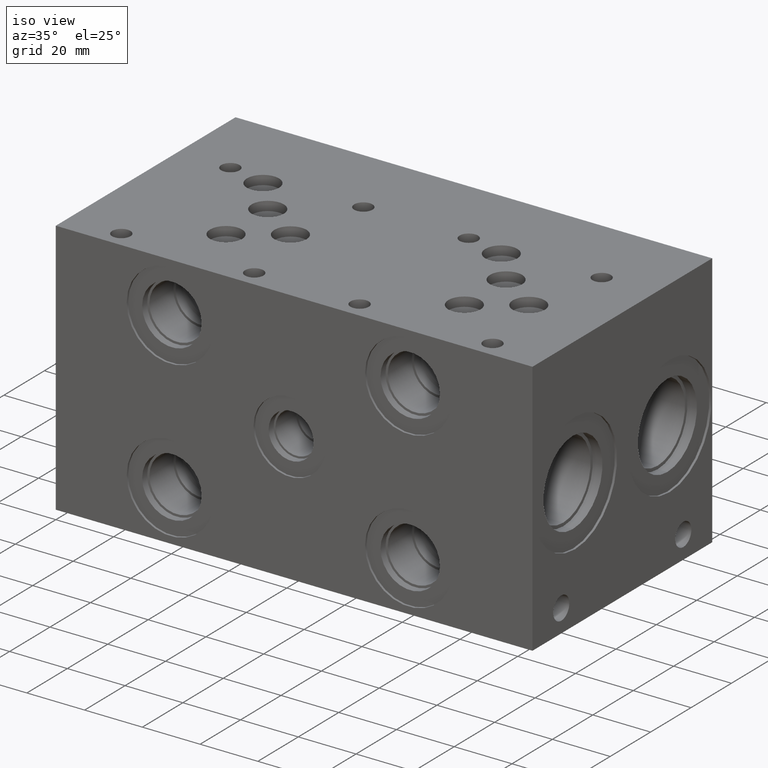
[diagram: clean part render]
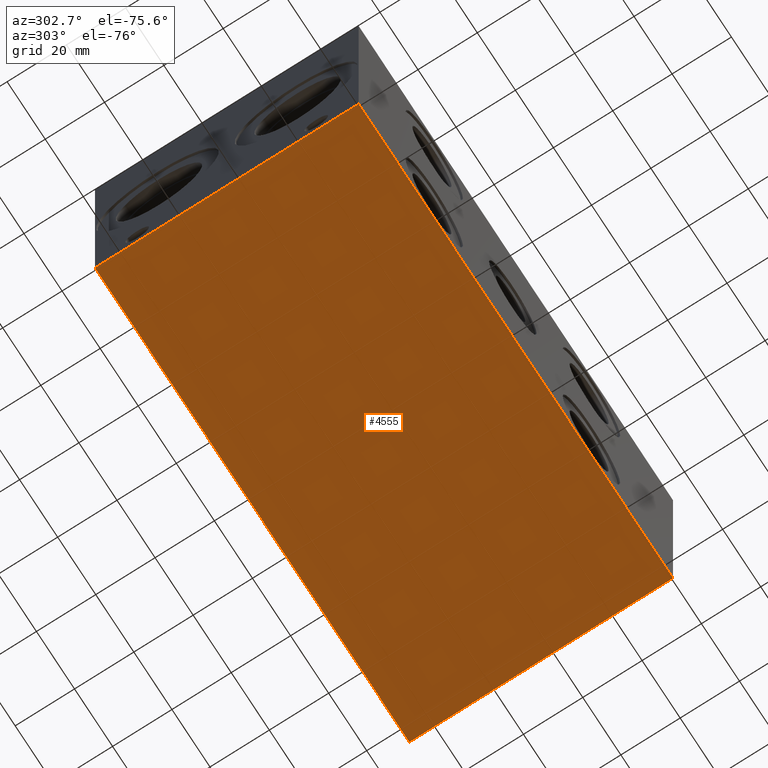
[diagram: tour spotlight — one face highlighted and labeled with its STEP entity id]
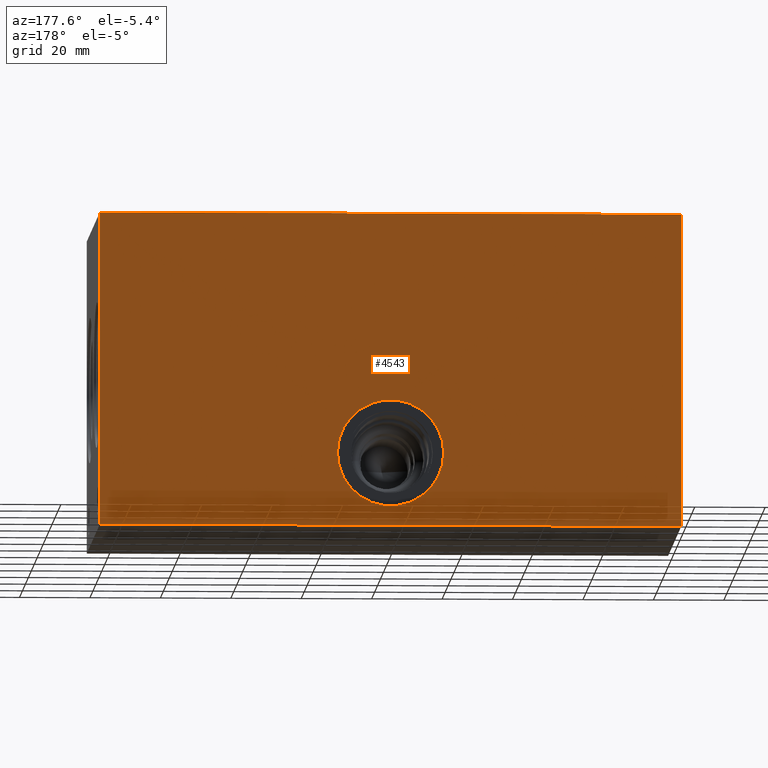
[diagram: tour spotlight — one face highlighted and labeled with its STEP entity id]
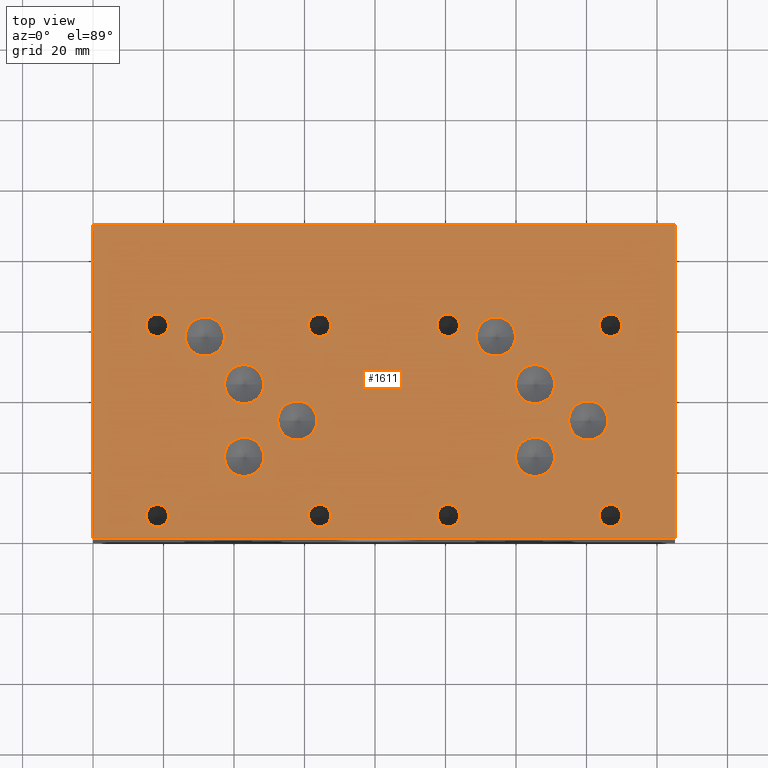
[diagram: tour spotlight — one face highlighted and labeled with its STEP entity id]
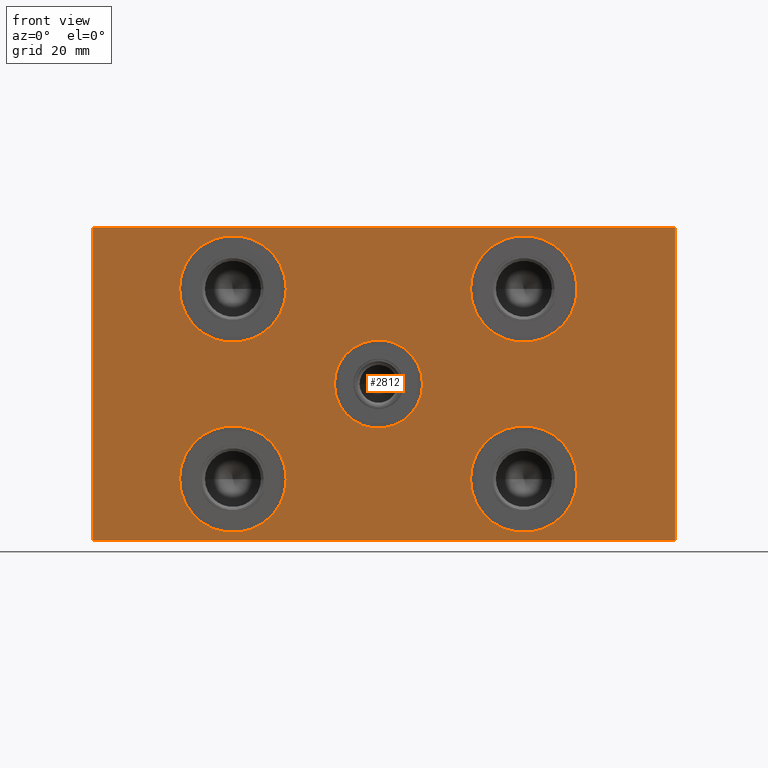
[diagram: tour spotlight — one face highlighted and labeled with its STEP entity id]
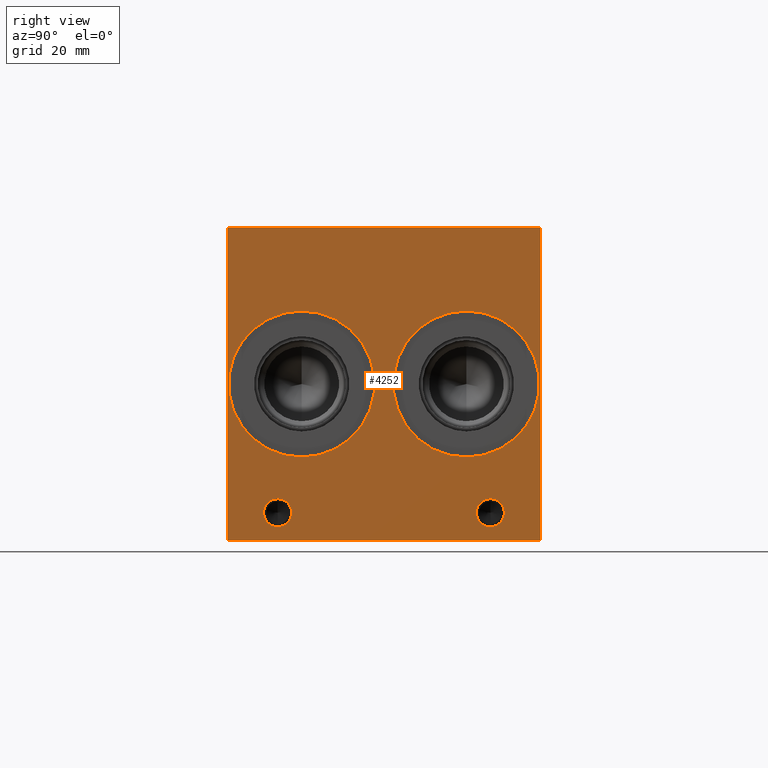
[diagram: tour spotlight — one face highlighted and labeled with its STEP entity id]
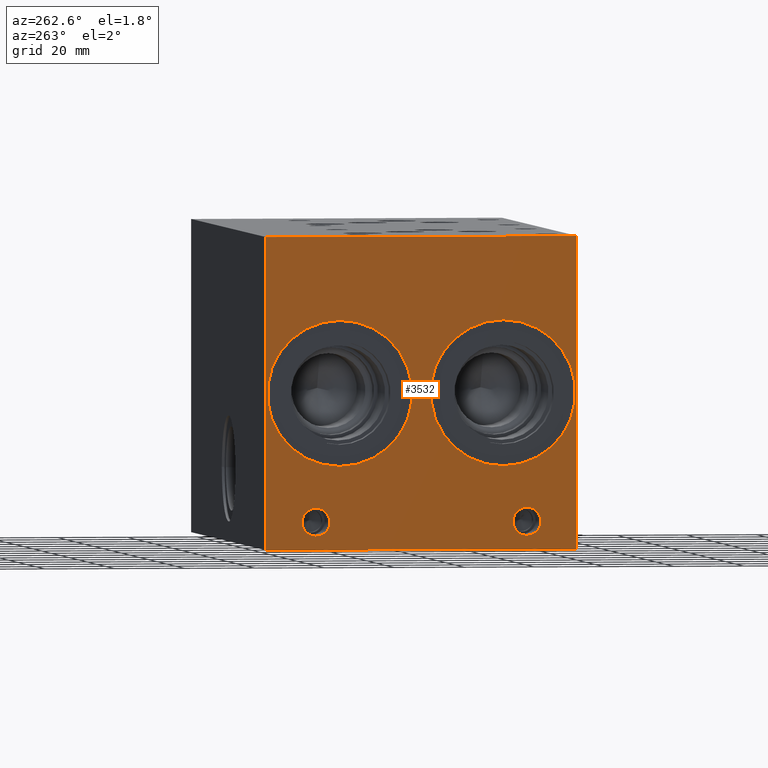
[diagram: tour spotlight — one face highlighted and labeled with its STEP entity id]
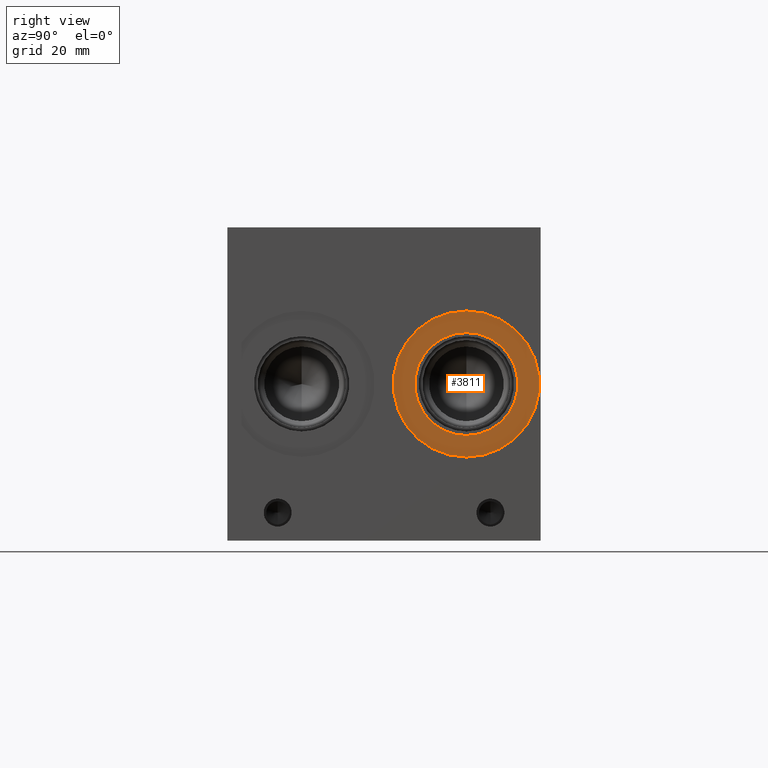
[diagram: tour spotlight — one face highlighted and labeled with its STEP entity id]
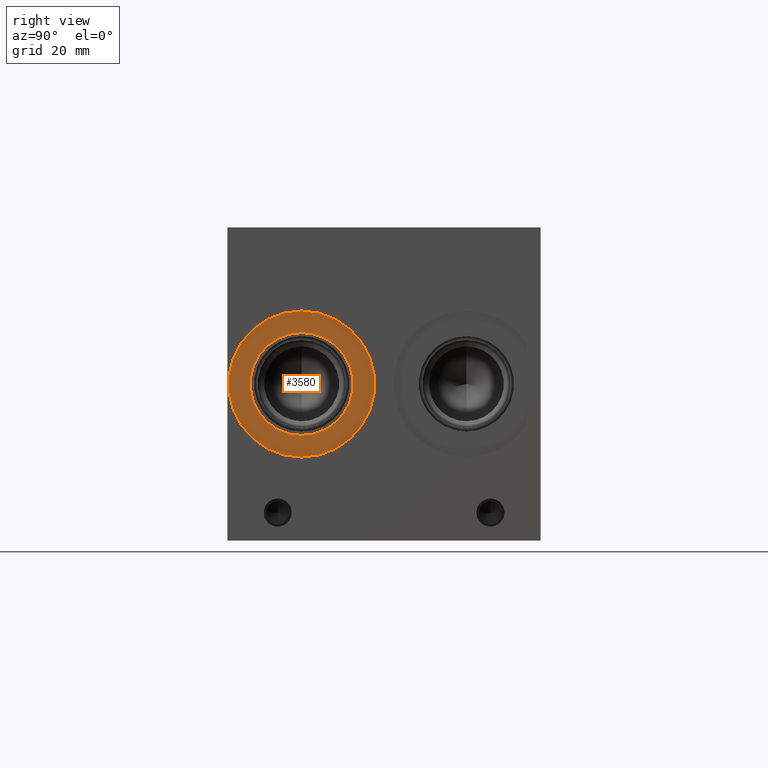
[diagram: tour spotlight — one face highlighted and labeled with its STEP entity id]
A machine part: a face-by-face anatomy tour. The part has 202 B-rep faces; the first image is the clean iso view, then the 8 largest visible faces are spotlighted one at a time (largest first), each with its STEP entity span.

Face 1 — auxiliary view, entity #4555. In plain terms, the highlighted planar face has unit normal (0, 0, -1).
Definition (entity closure, byte-faithful):
#2773=CARTESIAN_POINT('',(0.0,0.0,0.0));
#2774=VERTEX_POINT('',#2773);
#2781=CARTESIAN_POINT('',(165.099999999999970,0.0,0.0));
#2782=VERTEX_POINT('',#2781);
#2783=CARTESIAN_POINT('',(0.0,0.0,0.0));
#2784=DIRECTION('',(1.0,0.0,0.0));
#2785=VECTOR('',#2784,165.099999999999970);
#2786=LINE('',#2783,#2785);
#2787=EDGE_CURVE('',#2774,#2782,#2786,.T.);
#3503=CARTESIAN_POINT('',(0.0,88.899999999999991,0.0));
#3504=VERTEX_POINT('',#3503);
#3511=CARTESIAN_POINT('',(0.0,88.899999999999991,0.0));
#3512=DIRECTION('',(0.0,-1.0,0.0));
#3513=VECTOR('',#3512,88.899999999999991);
#3514=LINE('',#3511,#3513);
#3515=EDGE_CURVE('',#3504,#2774,#3514,.T.);
#4224=CARTESIAN_POINT('',(165.099999999999970,88.899999999999991,0.0));
#4225=VERTEX_POINT('',#4224);
#4226=CARTESIAN_POINT('',(165.099999999999970,0.0,0.0));
#4227=DIRECTION('',(0.0,1.0,0.0));
#4228=VECTOR('',#4227,88.899999999999991);
#4229=LINE('',#4226,#4228);
#4230=EDGE_CURVE('',#2782,#4225,#4229,.T.);
#4531=CARTESIAN_POINT('',(165.099999999999970,88.899999999999991,0.0));
#4532=DIRECTION('',(-1.0,0.0,0.0));
#4533=VECTOR('',#4532,165.099999999999970);
#4534=LINE('',#4531,#4533);
#4535=EDGE_CURVE('',#4225,#3504,#4534,.T.);
#4544=CARTESIAN_POINT('',(0.0,88.899999999999991,0.0));
#4545=DIRECTION('',(0.0,0.0,-1.0));
#4546=DIRECTION('',(-1.0,0.0,0.0));
#4547=AXIS2_PLACEMENT_3D('',#4544,#4545,#4546);
#4548=PLANE('',#4547);
#4549=ORIENTED_EDGE('',*,*,#2787,.F.);
#4550=ORIENTED_EDGE('',*,*,#3515,.F.);
#4551=ORIENTED_EDGE('',*,*,#4535,.F.);
#4552=ORIENTED_EDGE('',*,*,#4230,.F.);
#4553=EDGE_LOOP('',(#4549,#4550,#4551,#4552));
#4554=FACE_OUTER_BOUND('',#4553,.T.);
#4555=ADVANCED_FACE('',(#4554),#4548,.T.);

Face 2 — auxiliary view, entity #4543. In plain terms, the highlighted planar face has unit normal (0, -1, 0).
Definition (entity closure, byte-faithful):
#1531=CARTESIAN_POINT('',(0.0,88.899999999999991,88.899999999999991));
#1532=VERTEX_POINT('',#1531);
#1547=CARTESIAN_POINT('',(165.099999999999970,88.899999999999991,88.899999999999991));
#1548=VERTEX_POINT('',#1547);
#1555=CARTESIAN_POINT('',(0.0,88.899999999999991,88.899999999999991));
#1556=DIRECTION('',(1.0,0.0,0.0));
#1557=VECTOR('',#1556,165.099999999999970);
#1558=LINE('',#1555,#1557);
#1559=EDGE_CURVE('',#1532,#1548,#1558,.T.);
#3503=CARTESIAN_POINT('',(0.0,88.899999999999991,0.0));
#3504=VERTEX_POINT('',#3503);
#3505=CARTESIAN_POINT('',(0.0,88.899999999999991,0.0));
#3506=DIRECTION('',(0.0,0.0,1.0));
#3507=VECTOR('',#3506,88.899999999999991);
#3508=LINE('',#3505,#3507);
#3509=EDGE_CURVE('',#3504,#1532,#3508,.T.);
#4224=CARTESIAN_POINT('',(165.099999999999970,88.899999999999991,0.0));
#4225=VERTEX_POINT('',#4224);
#4232=CARTESIAN_POINT('',(165.099999999999970,88.899999999999991,0.0));
#4233=DIRECTION('',(0.0,0.0,1.0));
#4234=VECTOR('',#4233,88.899999999999991);
#4235=LINE('',#4232,#4234);
#4236=EDGE_CURVE('',#4225,#1548,#4235,.T.);
#4258=CARTESIAN_POINT('',(97.637599999999978,88.899999999999991,20.650199999999998));
#4259=VERTEX_POINT('',#4258);
#4260=CARTESIAN_POINT('',(82.549999999999983,88.899999999999991,20.650199999999998));
#4261=DIRECTION('',(0.0,-1.0,0.0));
#4262=DIRECTION('',(0.0,0.0,-1.0));
#4263=AXIS2_PLACEMENT_3D('',#4260,#4261,#4262);
#4264=CIRCLE('',#4263,15.087599999999997);
#4265=EDGE_CURVE('',#4259,#4259,#4264,.T.);
#4524=CARTESIAN_POINT('',(0.0,88.899999999999991,88.899999999999991));
#4525=DIRECTION('',(0.0,-1.0,0.0));
#4526=DIRECTION('',(0.0,0.0,-1.0));
#4527=AXIS2_PLACEMENT_3D('',#4524,#4525,#4526);
#4528=PLANE('',#4527);
#4529=ORIENTED_EDGE('',*,*,#1559,.T.);
#4530=ORIENTED_EDGE('',*,*,#4236,.F.);
#4531=CARTESIAN_POINT('',(165.099999999999970,88.899999999999991,0.0));
#4532=DIRECTION('',(-1.0,0.0,0.0));
#4533=VECTOR('',#4532,165.099999999999970);
#4534=LINE('',#4531,#4533);
#4535=EDGE_CURVE('',#4225,#3504,#4534,.T.);
#4536=ORIENTED_EDGE('',*,*,#4535,.T.);
#4537=ORIENTED_EDGE('',*,*,#3509,.T.);
#4538=EDGE_LOOP('',(#4529,#4530,#4536,#4537));
#4539=FACE_OUTER_BOUND('',#4538,.T.);
#4540=ORIENTED_EDGE('',*,*,#4265,.T.);
#4541=EDGE_LOOP('',(#4540));
#4542=FACE_BOUND('',#4541,.T.);
#4543=ADVANCED_FACE('',(#4539,#4542),#4528,.F.);

Face 3 — top view, entity #1611. In plain terms, the highlighted planar face has unit normal (0, 0, -1).
Definition (entity closure, byte-faithful):
#73=CARTESIAN_POINT('',(63.499999999999986,33.324799999999996,88.899999999999991));
#74=VERTEX_POINT('',#73);
#75=CARTESIAN_POINT('',(57.937399999999997,33.324799999999996,88.899999999999991));
#76=DIRECTION('',(0.0,0.0,-1.0));
#77=DIRECTION('',(1.0,0.0,0.0));
#78=AXIS2_PLACEMENT_3D('',#75,#76,#77);
#79=CIRCLE('',#78,5.562600000000000);
#80=EDGE_CURVE('',#74,#74,#79,.T.);
#144=CARTESIAN_POINT('',(37.307519999999997,57.137299999999982,88.899999999999991));
#145=VERTEX_POINT('',#144);
#146=CARTESIAN_POINT('',(31.744919999999993,57.137299999999982,88.899999999999991));
#147=DIRECTION('',(0.0,0.0,-1.0));
#148=DIRECTION('',(1.0,0.0,0.0));
#149=AXIS2_PLACEMENT_3D('',#146,#147,#148);
#150=CIRCLE('',#149,5.562600000000000);
#151=EDGE_CURVE('',#145,#145,#150,.T.);
#215=CARTESIAN_POINT('',(48.412399999999991,43.644819999999996,88.899999999999991));
#216=VERTEX_POINT('',#215);
#217=CARTESIAN_POINT('',(42.849800000000002,43.644819999999996,88.899999999999991));
#218=DIRECTION('',(0.0,0.0,-1.0));
#219=DIRECTION('',(1.0,0.0,0.0));
#220=AXIS2_PLACEMENT_3D('',#217,#218,#219);
#221=CIRCLE('',#220,5.562600000000000);
#222=EDGE_CURVE('',#216,#216,#221,.T.);
#286=CARTESIAN_POINT('',(48.417479999999991,23.007319999999996,88.899999999999991));
#287=VERTEX_POINT('',#286);
#288=CARTESIAN_POINT('',(42.854879999999994,23.007319999999996,88.899999999999991));
#289=DIRECTION('',(0.0,0.0,-1.0));
#290=DIRECTION('',(1.0,0.0,0.0));
#291=AXIS2_PLACEMENT_3D('',#288,#289,#290);
#292=CIRCLE('',#291,5.562600000000000);
#293=EDGE_CURVE('',#287,#287,#292,.T.);
#357=CARTESIAN_POINT('',(21.424900000000001,6.337299999999999,88.899999999999991));
#358=VERTEX_POINT('',#357);
#359=CARTESIAN_POINT('',(18.249900000000000,6.337299999999999,88.899999999999991));
#360=DIRECTION('',(0.0,0.0,-1.0));
#361=DIRECTION('',(1.0,0.0,0.0));
#362=AXIS2_PLACEMENT_3D('',#359,#360,#361);
#363=CIRCLE('',#362,3.174999999999999);
#364=EDGE_CURVE('',#358,#358,#363,.T.);
#468=CARTESIAN_POINT('',(67.462399999999988,6.337299999999999,88.899999999999991));
#469=VERTEX_POINT('',#468);
#470=CARTESIAN_POINT('',(64.287400000000005,6.337299999999999,88.899999999999991));
#471=DIRECTION('',(0.0,0.0,-1.0));
#472=DIRECTION('',(1.0,0.0,0.0));
#473=AXIS2_PLACEMENT_3D('',#470,#471,#472);
#474=CIRCLE('',#473,3.174999999999999);
#475=EDGE_CURVE('',#469,#469,#474,.T.);
#579=CARTESIAN_POINT('',(67.462399999999988,60.312299999999993,88.899999999999991));
#580=VERTEX_POINT('',#579);
#581=CARTESIAN_POINT('',(64.287400000000005,60.312299999999993,88.899999999999991));
#582=DIRECTION('',(0.0,0.0,-1.0));
#583=DIRECTION('',(1.0,0.0,0.0));
#584=AXIS2_PLACEMENT_3D('',#581,#582,#583);
#585=CIRCLE('',#584,3.174999999999999);
#586=EDGE_CURVE('',#580,#580,#585,.T.);
#690=CARTESIAN_POINT('',(21.412199999999999,60.324999999999989,88.899999999999991));
#691=VERTEX_POINT('',#690);
#692=CARTESIAN_POINT('',(18.237199999999998,60.324999999999989,88.899999999999991));
#693=DIRECTION('',(0.0,0.0,-1.0));
#694=DIRECTION('',(1.0,0.0,0.0));
#695=AXIS2_PLACEMENT_3D('',#692,#693,#694);
#696=CIRCLE('',#695,3.174999999999999);
#697=EDGE_CURVE('',#691,#691,#696,.T.);
#801=CARTESIAN_POINT('',(146.049999999999980,33.324799999999996,88.899999999999991));
#802=VERTEX_POINT('',#801);
#803=CARTESIAN_POINT('',(140.487399999999980,33.324799999999996,88.899999999999991));
#804=DIRECTION('',(0.0,0.0,-1.0));
#805=DIRECTION('',(1.0,0.0,0.0));
#806=AXIS2_PLACEMENT_3D('',#803,#804,#805);
#807=CIRCLE('',#806,5.562600000000000);
#808=EDGE_CURVE('',#802,#802,#807,.T.);
#872=CARTESIAN_POINT('',(119.857519999999980,57.137299999999982,88.899999999999991));
#873=VERTEX_POINT('',#872);
#874=CARTESIAN_POINT('',(114.294919999999980,57.137299999999982,88.899999999999991));
#875=DIRECTION('',(0.0,0.0,-1.0));
#876=DIRECTION('',(1.0,0.0,0.0));
#877=AXIS2_PLACEMENT_3D('',#874,#875,#876);
#878=CIRCLE('',#877,5.562600000000000);
#879=EDGE_CURVE('',#873,#873,#878,.T.);
#943=CARTESIAN_POINT('',(130.962399999999970,43.644819999999996,88.899999999999991));
#944=VERTEX_POINT('',#943);
#945=CARTESIAN_POINT('',(125.399799999999980,43.644819999999996,88.899999999999991));
#946=DIRECTION('',(0.0,0.0,-1.0));
#947=DIRECTION('',(1.0,0.0,0.0));
#948=AXIS2_PLACEMENT_3D('',#945,#946,#947);
#949=CIRCLE('',#948,5.562600000000000);
#950=EDGE_CURVE('',#944,#944,#949,.T.);
#1014=CARTESIAN_POINT('',(130.970019999999980,23.007319999999996,88.899999999999991));
#1015=VERTEX_POINT('',#1014);
#1016=CARTESIAN_POINT('',(125.407419999999970,23.007319999999996,88.899999999999991));
#1017=DIRECTION('',(0.0,0.0,-1.0));
#1018=DIRECTION('',(1.0,0.0,0.0));
#1019=AXIS2_PLACEMENT_3D('',#1016,#1017,#1018);
#1020=CIRCLE('',#1019,5.562600000000000);
#1021=EDGE_CURVE('',#1015,#1015,#1020,.T.);
#1085=CARTESIAN_POINT('',(103.974899999999980,6.337299999999999,88.899999999999991));
#1086=VERTEX_POINT('',#1085);
#1087=CARTESIAN_POINT('',(100.799899999999980,6.337299999999999,88.899999999999991));
#1088=DIRECTION('',(0.0,0.0,-1.0));
#1089=DIRECTION('',(1.0,0.0,0.0));
#1090=AXIS2_PLACEMENT_3D('',#1087,#1088,#1089);
#1091=CIRCLE('',#1090,3.174999999999999);
#1092=EDGE_CURVE('',#1086,#1086,#1091,.T.);
#1196=CARTESIAN_POINT('',(150.012399999999990,6.337299999999999,88.899999999999991));
#1197=VERTEX_POINT('',#1196);
#1198=CARTESIAN_POINT('',(146.837399999999950,6.337299999999999,88.899999999999991));
#1199=DIRECTION('',(0.0,0.0,-1.0));
#1200=DIRECTION('',(1.0,0.0,0.0));
#1201=AXIS2_PLACEMENT_3D('',#1198,#1199,#1200);
#1202=CIRCLE('',#1201,3.174999999999999);
#1203=EDGE_CURVE('',#1197,#1197,#1202,.T.);
#1307=CARTESIAN_POINT('',(150.012399999999990,60.312299999999993,88.899999999999991));
#1308=VERTEX_POINT('',#1307);
#1309=CARTESIAN_POINT('',(146.837399999999950,60.312299999999993,88.899999999999991));
#1310=DIRECTION('',(0.0,0.0,-1.0));
#1311=DIRECTION('',(1.0,0.0,0.0));
#1312=AXIS2_PLACEMENT_3D('',#1309,#1310,#1311);
#1313=CIRCLE('',#1312,3.174999999999999);
#1314=EDGE_CURVE('',#1308,#1308,#1313,.T.);
#1418=CARTESIAN_POINT('',(103.962199999999980,60.324999999999989,88.899999999999991));
#1419=VERTEX_POINT('',#1418);
#1420=CARTESIAN_POINT('',(100.787199999999980,60.324999999999989,88.899999999999991));
#1421=DIRECTION('',(0.0,0.0,-1.0));
#1422=DIRECTION('',(1.0,0.0,0.0));
#1423=AXIS2_PLACEMENT_3D('',#1420,#1421,#1422);
#1424=CIRCLE('',#1423,3.174999999999999);
#1425=EDGE_CURVE('',#1419,#1419,#1424,.T.);
#1524=CARTESIAN_POINT('',(0.0,88.899999999999991,88.899999999999991));
#1525=DIRECTION('',(0.0,0.0,-1.0));
#1526=DIRECTION('',(-1.0,0.0,0.0));
#1527=AXIS2_PLACEMENT_3D('',#1524,#1525,#1526);
#1528=PLANE('',#1527);
#1529=CARTESIAN_POINT('',(0.0,0.0,88.899999999999991));
#1530=VERTEX_POINT('',#1529);
#1531=CARTESIAN_POINT('',(0.0,88.899999999999991,88.899999999999991));
#1532=VERTEX_POINT('',#1531);
#1533=CARTESIAN_POINT('',(0.0,0.0,88.899999999999991));
#1534=DIRECTION('',(0.0,1.0,0.0));
#1535=VECTOR('',#1534,88.899999999999991);
#1536=LINE('',#1533,#1535);
#1537=EDGE_CURVE('',#1530,#1532,#1536,.T.);
#1538=ORIENTED_EDGE('',*,*,#1537,.F.);
#1539=CARTESIAN_POINT('',(165.099999999999970,0.0,88.899999999999991));
#1540=VERTEX_POINT('',#1539);
#1541=CARTESIAN_POINT('',(165.099999999999970,0.0,88.899999999999991));
#1542=DIRECTION('',(-1.0,0.0,0.0));
#1543=VECTOR('',#1542,165.099999999999970);
#1544=LINE('',#1541,#1543);
#1545=EDGE_CURVE('',#1540,#1530,#1544,.T.);
#1546=ORIENTED_EDGE('',*,*,#1545,.F.);
#1547=CARTESIAN_POINT('',(165.099999999999970,88.899999999999991,88.899999999999991));
#1548=VERTEX_POINT('',#1547);
#1549=CARTESIAN_POINT('',(165.099999999999970,88.899999999999991,88.899999999999991));
#1550=DIRECTION('',(0.0,-1.0,0.0));
#1551=VECTOR('',#1550,88.899999999999991);
#1552=LINE('',#1549,#1551);
#1553=EDGE_CURVE('',#1548,#1540,#1552,.T.);
#1554=ORIENTED_EDGE('',*,*,#1553,.F.);
#1555=CARTESIAN_POINT('',(0.0,88.899999999999991,88.899999999999991));
#1556=DIRECTION('',(1.0,0.0,0.0));
#1557=VECTOR('',#1556,165.099999999999970);
#1558=LINE('',#1555,#1557);
#1559=EDGE_CURVE('',#1532,#1548,#1558,.T.);
#1560=ORIENTED_EDGE('',*,*,#1559,.F.);
#1561=EDGE_LOOP('',(#1538,#1546,#1554,#1560));
#1562=FACE_OUTER_BOUND('',#1561,.T.);
#1563=ORIENTED_EDGE('',*,*,#80,.T.);
#1564=EDGE_LOOP('',(#1563));
#1565=FACE_BOUND('',#1564,.T.);
#1566=ORIENTED_EDGE('',*,*,#151,.T.);
#1567=EDGE_LOOP('',(#1566));
#1568=FACE_BOUND('',#1567,.T.);
#1569=ORIENTED_EDGE('',*,*,#222,.T.);
#1570=EDGE_LOOP('',(#1569));
#1571=FACE_BOUND('',#1570,.T.);
#1572=ORIENTED_EDGE('',*,*,#293,.T.);
#1573=EDGE_LOOP('',(#1572));
#1574=FACE_BOUND('',#1573,.T.);
#1575=ORIENTED_EDGE('',*,*,#364,.T.);
#1576=EDGE_LOOP('',(#1575));
#1577=FACE_BOUND('',#1576,.T.);
#1578=ORIENTED_EDGE('',*,*,#475,.T.);
#1579=EDGE_LOOP('',(#1578));
#1580=FACE_BOUND('',#1579,.T.);
#1581=ORIENTED_EDGE('',*,*,#586,.T.);
#1582=EDGE_LOOP('',(#1581));
#1583=FACE_BOUND('',#1582,.T.);
#1584=ORIENTED_EDGE('',*,*,#697,.T.);
#1585=EDGE_LOOP('',(#1584));
#1586=FACE_BOUND('',#1585,.T.);
#1587=ORIENTED_EDGE('',*,*,#808,.T.);
#1588=EDGE_LOOP('',(#1587));
#1589=FACE_BOUND('',#1588,.T.);
#1590=ORIENTED_EDGE('',*,*,#879,.T.);
#1591=EDGE_LOOP('',(#1590));
#1592=FACE_BOUND('',#1591,.T.);
#1593=ORIENTED_EDGE('',*,*,#950,.T.);
#1594=EDGE_LOOP('',(#1593));
#1595=FACE_BOUND('',#1594,.T.);
#1596=ORIENTED_EDGE('',*,*,#1021,.T.);
#1597=EDGE_LOOP('',(#1596));
#1598=FACE_BOUND('',#1597,.T.);
#1599=ORIENTED_EDGE('',*,*,#1092,.T.);
#1600=EDGE_LOOP('',(#1599));
#1601=FACE_BOUND('',#1600,.T.);
#1602=ORIENTED_EDGE('',*,*,#1203,.T.);
#1603=EDGE_LOOP('',(#1602));
#1604=FACE_BOUND('',#1603,.T.);
#1605=ORIENTED_EDGE('',*,*,#1314,.T.);
#1606=EDGE_LOOP('',(#1605));
#1607=FACE_BOUND('',#1606,.T.);
#1608=ORIENTED_EDGE('',*,*,#1425,.T.);
#1609=EDGE_LOOP('',(#1608));
#1610=FACE_BOUND('',#1609,.T.);
#1611=ADVANCED_FACE('',(#1562,#1565,#1568,#1571,#1574,#1577,#1580,#1583,#1586,#1589,#1592,#1595,#1598,#1601,#1604,#1607,#1610),#1528,.F.);

Face 4 — front view, entity #2812. In plain terms, the highlighted planar face has unit normal (0, 1, 0).
Definition (entity closure, byte-faithful):
#1529=CARTESIAN_POINT('',(0.0,0.0,88.899999999999991));
#1530=VERTEX_POINT('',#1529);
#1539=CARTESIAN_POINT('',(165.099999999999970,0.0,88.899999999999991));
#1540=VERTEX_POINT('',#1539);
#1541=CARTESIAN_POINT('',(165.099999999999970,0.0,88.899999999999991));
#1542=DIRECTION('',(-1.0,0.0,0.0));
#1543=VECTOR('',#1542,165.099999999999970);
#1544=LINE('',#1541,#1543);
#1545=EDGE_CURVE('',#1540,#1530,#1544,.T.);
#1617=CARTESIAN_POINT('',(54.800499999999992,0.0,71.424799999999991));
#1618=VERTEX_POINT('',#1617);
#1619=CARTESIAN_POINT('',(39.674799999999991,0.0,71.424799999999991));
#1620=DIRECTION('',(0.0,1.0,0.0));
#1621=DIRECTION('',(-1.0,0.0,0.0));
#1622=AXIS2_PLACEMENT_3D('',#1619,#1620,#1621);
#1623=CIRCLE('',#1622,15.125699999999998);
#1624=EDGE_CURVE('',#1618,#1618,#1623,.T.);
#1848=CARTESIAN_POINT('',(54.800499999999992,0.0,17.475199999999997));
#1849=VERTEX_POINT('',#1848);
#1850=CARTESIAN_POINT('',(39.674799999999991,0.0,17.475199999999997));
#1851=DIRECTION('',(0.0,1.0,0.0));
#1852=DIRECTION('',(-1.0,0.0,0.0));
#1853=AXIS2_PLACEMENT_3D('',#1850,#1851,#1852);
#1854=CIRCLE('',#1853,15.125699999999998);
#1855=EDGE_CURVE('',#1849,#1849,#1854,.T.);
#2079=CARTESIAN_POINT('',(137.350499999999950,0.0,17.475199999999997));
#2080=VERTEX_POINT('',#2079);
#2081=CARTESIAN_POINT('',(122.224799999999990,0.0,17.475199999999997));
#2082=DIRECTION('',(0.0,1.0,0.0));
#2083=DIRECTION('',(-1.0,0.0,0.0));
#2084=AXIS2_PLACEMENT_3D('',#2081,#2082,#2083);
#2085=CIRCLE('',#2084,15.125699999999998);
#2086=EDGE_CURVE('',#2080,#2080,#2085,.T.);
#2310=CARTESIAN_POINT('',(137.350499999999950,0.0,71.424799999999991));
#2311=VERTEX_POINT('',#2310);
#2312=CARTESIAN_POINT('',(122.224799999999990,0.0,71.424799999999991));
#2313=DIRECTION('',(0.0,1.0,0.0));
#2314=DIRECTION('',(-1.0,0.0,0.0));
#2315=AXIS2_PLACEMENT_3D('',#2312,#2313,#2314);
#2316=CIRCLE('',#2315,15.125699999999998);
#2317=EDGE_CURVE('',#2311,#2311,#2316,.T.);
#2541=CARTESIAN_POINT('',(93.484699999999975,0.0,44.449999999999996));
#2542=VERTEX_POINT('',#2541);
#2543=CARTESIAN_POINT('',(80.975200000000001,0.0,44.449999999999996));
#2544=DIRECTION('',(0.0,1.0,0.0));
#2545=DIRECTION('',(-1.0,0.0,0.0));
#2546=AXIS2_PLACEMENT_3D('',#2543,#2544,#2545);
#2547=CIRCLE('',#2546,12.509499999999997);
#2548=EDGE_CURVE('',#2542,#2542,#2547,.T.);
#2767=CARTESIAN_POINT('',(0.0,0.0,88.899999999999991));
#2768=DIRECTION('',(0.0,1.0,0.0));
#2769=DIRECTION('',(0.0,0.0,1.0));
#2770=AXIS2_PLACEMENT_3D('',#2767,#2768,#2769);
#2771=PLANE('',#2770);
#2772=ORIENTED_EDGE('',*,*,#1545,.T.);
#2773=CARTESIAN_POINT('',(0.0,0.0,0.0));
#2774=VERTEX_POINT('',#2773);
#2775=CARTESIAN_POINT('',(0.0,0.0,0.0));
#2776=DIRECTION('',(0.0,0.0,1.0));
#2777=VECTOR('',#2776,88.899999999999991);
#2778=LINE('',#2775,#2777);
#2779=EDGE_CURVE('',#2774,#1530,#2778,.T.);
#2780=ORIENTED_EDGE('',*,*,#2779,.F.);
#2781=CARTESIAN_POINT('',(165.099999999999970,0.0,0.0));
#2782=VERTEX_POINT('',#2781);
#2783=CARTESIAN_POINT('',(0.0,0.0,0.0));
#2784=DIRECTION('',(1.0,0.0,0.0));
#2785=VECTOR('',#2784,165.099999999999970);
#2786=LINE('',#2783,#2785);
#2787=EDGE_CURVE('',#2774,#2782,#2786,.T.);
#2788=ORIENTED_EDGE('',*,*,#2787,.T.);
#2789=CARTESIAN_POINT('',(165.099999999999970,0.0,0.0));
#2790=DIRECTION('',(0.0,0.0,1.0));
#2791=VECTOR('',#2790,88.899999999999991);
#2792=LINE('',#2789,#2791);
#2793=EDGE_CURVE('',#2782,#1540,#2792,.T.);
#2794=ORIENTED_EDGE('',*,*,#2793,.T.);
#2795=EDGE_LOOP('',(#2772,#2780,#2788,#2794));
#2796=FACE_OUTER_BOUND('',#2795,.T.);
#2797=ORIENTED_EDGE('',*,*,#1624,.T.);
#2798=EDGE_LOOP('',(#2797));
#2799=FACE_BOUND('',#2798,.T.);
#2800=ORIENTED_EDGE('',*,*,#1855,.T.);
#2801=EDGE_LOOP('',(#2800));
#2802=FACE_BOUND('',#2801,.T.);
#2803=ORIENTED_EDGE('',*,*,#2086,.T.);
#2804=EDGE_LOOP('',(#2803));
#2805=FACE_BOUND('',#2804,.T.);
#2806=ORIENTED_EDGE('',*,*,#2317,.T.);
#2807=EDGE_LOOP('',(#2806));
#2808=FACE_BOUND('',#2807,.T.);
#2809=ORIENTED_EDGE('',*,*,#2548,.T.);
#2810=EDGE_LOOP('',(#2809));
#2811=FACE_BOUND('',#2810,.T.);
#2812=ADVANCED_FACE('',(#2796,#2799,#2802,#2805,#2808,#2811),#2771,.F.);

Face 5 — right view, entity #4252. In plain terms, the highlighted planar face has unit normal (-1, 0, 0).
Definition (entity closure, byte-faithful):
#1539=CARTESIAN_POINT('',(165.099999999999970,0.0,88.899999999999991));
#1540=VERTEX_POINT('',#1539);
#1547=CARTESIAN_POINT('',(165.099999999999970,88.899999999999991,88.899999999999991));
#1548=VERTEX_POINT('',#1547);
#1549=CARTESIAN_POINT('',(165.099999999999970,88.899999999999991,88.899999999999991));
#1550=DIRECTION('',(0.0,-1.0,0.0));
#1551=VECTOR('',#1550,88.899999999999991);
#1552=LINE('',#1549,#1551);
#1553=EDGE_CURVE('',#1548,#1540,#1552,.T.);
#2781=CARTESIAN_POINT('',(165.099999999999970,0.0,0.0));
#2782=VERTEX_POINT('',#2781);
#2789=CARTESIAN_POINT('',(165.099999999999970,0.0,0.0));
#2790=DIRECTION('',(0.0,0.0,1.0));
#2791=VECTOR('',#2790,88.899999999999991);
#2792=LINE('',#2789,#2791);
#2793=EDGE_CURVE('',#2782,#1540,#2792,.T.);
#3538=CARTESIAN_POINT('',(165.099999999999970,21.081999999999997,23.723600000000001));
#3539=VERTEX_POINT('',#3538);
#3540=CARTESIAN_POINT('',(165.099999999999970,21.081999999999997,44.449999999999996));
#3541=DIRECTION('',(-1.0,0.0,0.0));
#3542=DIRECTION('',(0.0,-1.0,0.0));
#3543=AXIS2_PLACEMENT_3D('',#3540,#3541,#3542);
#3544=CIRCLE('',#3543,20.726399999999998);
#3545=EDGE_CURVE('',#3539,#3539,#3544,.T.);
#3769=CARTESIAN_POINT('',(165.099999999999970,67.817999999999984,23.723600000000001));
#3770=VERTEX_POINT('',#3769);
#3771=CARTESIAN_POINT('',(165.099999999999970,67.817999999999984,44.449999999999996));
#3772=DIRECTION('',(-1.0,0.0,0.0));
#3773=DIRECTION('',(0.0,-1.0,0.0));
#3774=AXIS2_PLACEMENT_3D('',#3771,#3772,#3773);
#3775=CIRCLE('',#3774,20.726399999999998);
#3776=EDGE_CURVE('',#3770,#3770,#3775,.T.);
#4000=CARTESIAN_POINT('',(165.099999999999970,14.274799999999999,3.949699999999999));
#4001=VERTEX_POINT('',#4000);
#4002=CARTESIAN_POINT('',(165.099999999999970,14.274799999999999,7.924799999999999));
#4003=DIRECTION('',(-1.0,0.0,0.0));
#4004=DIRECTION('',(0.0,-1.0,0.0));
#4005=AXIS2_PLACEMENT_3D('',#4002,#4003,#4004);
#4006=CIRCLE('',#4005,3.975099999999999);
#4007=EDGE_CURVE('',#4001,#4001,#4006,.T.);
#4111=CARTESIAN_POINT('',(165.099999999999970,74.625199999999992,3.949699999999999));
#4112=VERTEX_POINT('',#4111);
#4113=CARTESIAN_POINT('',(165.099999999999970,74.625199999999992,7.924799999999999));
#4114=DIRECTION('',(-1.0,0.0,0.0));
#4115=DIRECTION('',(0.0,-1.0,0.0));
#4116=AXIS2_PLACEMENT_3D('',#4113,#4114,#4115);
#4117=CIRCLE('',#4116,3.975099999999999);
#4118=EDGE_CURVE('',#4112,#4112,#4117,.T.);
#4217=CARTESIAN_POINT('',(165.099999999999970,0.0,88.899999999999991));
#4218=DIRECTION('',(-1.0,0.0,0.0));
#4219=DIRECTION('',(0.0,0.0,1.0));
#4220=AXIS2_PLACEMENT_3D('',#4217,#4218,#4219);
#4221=PLANE('',#4220);
#4222=ORIENTED_EDGE('',*,*,#1553,.T.);
#4223=ORIENTED_EDGE('',*,*,#2793,.F.);
#4224=CARTESIAN_POINT('',(165.099999999999970,88.899999999999991,0.0));
#4225=VERTEX_POINT('',#4224);
#4226=CARTESIAN_POINT('',(165.099999999999970,0.0,0.0));
#4227=DIRECTION('',(0.0,1.0,0.0));
#4228=VECTOR('',#4227,88.899999999999991);
#4229=LINE('',#4226,#4228);
#4230=EDGE_CURVE('',#2782,#4225,#4229,.T.);
#4231=ORIENTED_EDGE('',*,*,#4230,.T.);
#4232=CARTESIAN_POINT('',(165.099999999999970,88.899999999999991,0.0));
#4233=DIRECTION('',(0.0,0.0,1.0));
#4234=VECTOR('',#4233,88.899999999999991);
#4235=LINE('',#4232,#4234);
#4236=EDGE_CURVE('',#4225,#1548,#4235,.T.);
#4237=ORIENTED_EDGE('',*,*,#4236,.T.);
#4238=EDGE_LOOP('',(#4222,#4223,#4231,#4237));
#4239=FACE_OUTER_BOUND('',#4238,.T.);
#4240=ORIENTED_EDGE('',*,*,#3545,.T.);
#4241=EDGE_LOOP('',(#4240));
#4242=FACE_BOUND('',#4241,.T.);
#4243=ORIENTED_EDGE('',*,*,#3776,.T.);
#4244=EDGE_LOOP('',(#4243));
#4245=FACE_BOUND('',#4244,.T.);
#4246=ORIENTED_EDGE('',*,*,#4007,.T.);
#4247=EDGE_LOOP('',(#4246));
#4248=FACE_BOUND('',#4247,.T.);
#4249=ORIENTED_EDGE('',*,*,#4118,.T.);
#4250=EDGE_LOOP('',(#4249));
#4251=FACE_BOUND('',#4250,.T.);
#4252=ADVANCED_FACE('',(#4239,#4242,#4245,#4248,#4251),#4221,.F.);

Face 6 — auxiliary view, entity #3532. In plain terms, the highlighted planar face has unit normal (1, 0, 0).
Definition (entity closure, byte-faithful):
#1529=CARTESIAN_POINT('',(0.0,0.0,88.899999999999991));
#1530=VERTEX_POINT('',#1529);
#1531=CARTESIAN_POINT('',(0.0,88.899999999999991,88.899999999999991));
#1532=VERTEX_POINT('',#1531);
#1533=CARTESIAN_POINT('',(0.0,0.0,88.899999999999991));
#1534=DIRECTION('',(0.0,1.0,0.0));
#1535=VECTOR('',#1534,88.899999999999991);
#1536=LINE('',#1533,#1535);
#1537=EDGE_CURVE('',#1530,#1532,#1536,.T.);
#2773=CARTESIAN_POINT('',(0.0,0.0,0.0));
#2774=VERTEX_POINT('',#2773);
#2775=CARTESIAN_POINT('',(0.0,0.0,0.0));
#2776=DIRECTION('',(0.0,0.0,1.0));
#2777=VECTOR('',#2776,88.899999999999991);
#2778=LINE('',#2775,#2777);
#2779=EDGE_CURVE('',#2774,#1530,#2778,.T.);
#2818=CARTESIAN_POINT('',(0.0,21.081999999999997,65.176399999999987));
#2819=VERTEX_POINT('',#2818);
#2820=CARTESIAN_POINT('',(0.0,21.081999999999997,44.449999999999996));
#2821=DIRECTION('',(1.0,0.0,0.0));
#2822=DIRECTION('',(0.0,-1.0,0.0));
#2823=AXIS2_PLACEMENT_3D('',#2820,#2821,#2822);
#2824=CIRCLE('',#2823,20.726399999999998);
#2825=EDGE_CURVE('',#2819,#2819,#2824,.T.);
#3049=CARTESIAN_POINT('',(0.0,67.817999999999984,65.176399999999987));
#3050=VERTEX_POINT('',#3049);
#3051=CARTESIAN_POINT('',(0.0,67.817999999999984,44.449999999999996));
#3052=DIRECTION('',(1.0,0.0,0.0));
#3053=DIRECTION('',(0.0,-1.0,0.0));
#3054=AXIS2_PLACEMENT_3D('',#3051,#3052,#3053);
#3055=CIRCLE('',#3054,20.726399999999998);
#3056=EDGE_CURVE('',#3050,#3050,#3055,.T.);
#3280=CARTESIAN_POINT('',(0.0,14.274799999999999,11.899899999999999));
#3281=VERTEX_POINT('',#3280);
#3282=CARTESIAN_POINT('',(0.0,14.274799999999999,7.924799999999999));
#3283=DIRECTION('',(1.0,0.0,0.0));
#3284=DIRECTION('',(0.0,-1.0,0.0));
#3285=AXIS2_PLACEMENT_3D('',#3282,#3283,#3284);
#3286=CIRCLE('',#3285,3.975099999999999);
#3287=EDGE_CURVE('',#3281,#3281,#3286,.T.);
#3391=CARTESIAN_POINT('',(0.0,74.625199999999992,11.899899999999999));
#3392=VERTEX_POINT('',#3391);
#3393=CARTESIAN_POINT('',(0.0,74.625199999999992,7.924799999999999));
#3394=DIRECTION('',(1.0,0.0,0.0));
#3395=DIRECTION('',(0.0,-1.0,0.0));
#3396=AXIS2_PLACEMENT_3D('',#3393,#3394,#3395);
#3397=CIRCLE('',#3396,3.975099999999999);
#3398=EDGE_CURVE('',#3392,#3392,#3397,.T.);
#3497=CARTESIAN_POINT('',(0.0,0.0,88.899999999999991));
#3498=DIRECTION('',(1.0,0.0,0.0));
#3499=DIRECTION('',(0.0,0.0,-1.0));
#3500=AXIS2_PLACEMENT_3D('',#3497,#3498,#3499);
#3501=PLANE('',#3500);
#3502=ORIENTED_EDGE('',*,*,#1537,.T.);
#3503=CARTESIAN_POINT('',(0.0,88.899999999999991,0.0));
#3504=VERTEX_POINT('',#3503);
#3505=CARTESIAN_POINT('',(0.0,88.899999999999991,0.0));
#3506=DIRECTION('',(0.0,0.0,1.0));
#3507=VECTOR('',#3506,88.899999999999991);
#3508=LINE('',#3505,#3507);
#3509=EDGE_CURVE('',#3504,#1532,#3508,.T.);
#3510=ORIENTED_EDGE('',*,*,#3509,.F.);
#3511=CARTESIAN_POINT('',(0.0,88.899999999999991,0.0));
#3512=DIRECTION('',(0.0,-1.0,0.0));
#3513=VECTOR('',#3512,88.899999999999991);
#3514=LINE('',#3511,#3513);
#3515=EDGE_CURVE('',#3504,#2774,#3514,.T.);
#3516=ORIENTED_EDGE('',*,*,#3515,.T.);
#3517=ORIENTED_EDGE('',*,*,#2779,.T.);
#3518=EDGE_LOOP('',(#3502,#3510,#3516,#3517));
#3519=FACE_OUTER_BOUND('',#3518,.T.);
#3520=ORIENTED_EDGE('',*,*,#2825,.T.);
#3521=EDGE_LOOP('',(#3520));
#3522=FACE_BOUND('',#3521,.T.);
#3523=ORIENTED_EDGE('',*,*,#3056,.T.);
#3524=EDGE_LOOP('',(#3523));
#3525=FACE_BOUND('',#3524,.T.);
#3526=ORIENTED_EDGE('',*,*,#3287,.T.);
#3527=EDGE_LOOP('',(#3526));
#3528=FACE_BOUND('',#3527,.T.);
#3529=ORIENTED_EDGE('',*,*,#3398,.T.);
#3530=EDGE_LOOP('',(#3529));
#3531=FACE_BOUND('',#3530,.T.);
#3532=ADVANCED_FACE('',(#3519,#3522,#3525,#3528,#3531),#3501,.F.);

Face 7 — right view, entity #3811. In plain terms, the highlighted planar face has unit normal (-1, 0, 0).
Definition (entity closure, byte-faithful):
#3780=CARTESIAN_POINT('',(164.337999999999970,67.817999999999984,23.723600000000001));
#3781=VERTEX_POINT('',#3780);
#3782=CARTESIAN_POINT('',(164.337999999999970,67.817999999999984,44.449999999999996));
#3783=DIRECTION('',(-1.0,0.0,0.0));
#3784=DIRECTION('',(0.0,-1.0,0.0));
#3785=AXIS2_PLACEMENT_3D('',#3782,#3783,#3784);
#3786=CIRCLE('',#3785,20.726399999999998);
#3787=EDGE_CURVE('',#3781,#3781,#3786,.T.);
#3792=CARTESIAN_POINT('',(164.337999999999970,67.817999999999984,44.449999999999996));
#3793=DIRECTION('',(-1.0,0.0,0.0));
#3794=DIRECTION('',(0.0,0.0,1.0));
#3795=AXIS2_PLACEMENT_3D('',#3792,#3793,#3794);
#3796=PLANE('',#3795);
#3797=ORIENTED_EDGE('',*,*,#3787,.F.);
#3798=EDGE_LOOP('',(#3797));
#3799=FACE_OUTER_BOUND('',#3798,.T.);
#3800=CARTESIAN_POINT('',(164.337999999999970,67.817999999999984,29.844999999999999));
#3801=VERTEX_POINT('',#3800);
#3802=CARTESIAN_POINT('',(164.337999999999970,67.817999999999984,44.449999999999996));
#3803=DIRECTION('',(-1.0,0.0,0.0));
#3804=DIRECTION('',(0.0,-1.0,0.0));
#3805=AXIS2_PLACEMENT_3D('',#3802,#3803,#3804);
#3806=CIRCLE('',#3805,14.604999999999997);
#3807=EDGE_CURVE('',#3801,#3801,#3806,.T.);
#3808=ORIENTED_EDGE('',*,*,#3807,.T.);
#3809=EDGE_LOOP('',(#3808));
#3810=FACE_BOUND('',#3809,.T.);
#3811=ADVANCED_FACE('',(#3799,#3810),#3796,.F.);

Face 8 — right view, entity #3580. In plain terms, the highlighted planar face has unit normal (-1, 0, 0).
Definition (entity closure, byte-faithful):
#3549=CARTESIAN_POINT('',(164.337999999999970,21.081999999999997,23.723600000000001));
#3550=VERTEX_POINT('',#3549);
#3551=CARTESIAN_POINT('',(164.337999999999970,21.081999999999997,44.449999999999996));
#3552=DIRECTION('',(-1.0,0.0,0.0));
#3553=DIRECTION('',(0.0,-1.0,0.0));
#3554=AXIS2_PLACEMENT_3D('',#3551,#3552,#3553);
#3555=CIRCLE('',#3554,20.726399999999998);
#3556=EDGE_CURVE('',#3550,#3550,#3555,.T.);
#3561=CARTESIAN_POINT('',(164.337999999999970,21.081999999999997,44.449999999999996));
#3562=DIRECTION('',(-1.0,0.0,0.0));
#3563=DIRECTION('',(0.0,0.0,1.0));
#3564=AXIS2_PLACEMENT_3D('',#3561,#3562,#3563);
#3565=PLANE('',#3564);
#3566=ORIENTED_EDGE('',*,*,#3556,.F.);
#3567=EDGE_LOOP('',(#3566));
#3568=FACE_OUTER_BOUND('',#3567,.T.);
#3569=CARTESIAN_POINT('',(164.337999999999970,21.081999999999997,29.844999999999999));
#3570=VERTEX_POINT('',#3569);
#3571=CARTESIAN_POINT('',(164.337999999999970,21.081999999999997,44.449999999999996));
#3572=DIRECTION('',(-1.0,0.0,0.0));
#3573=DIRECTION('',(0.0,-1.0,0.0));
#3574=AXIS2_PLACEMENT_3D('',#3571,#3572,#3573);
#3575=CIRCLE('',#3574,14.604999999999997);
#3576=EDGE_CURVE('',#3570,#3570,#3575,.T.);
#3577=ORIENTED_EDGE('',*,*,#3576,.T.);
#3578=EDGE_LOOP('',(#3577));
#3579=FACE_BOUND('',#3578,.T.);
#3580=ADVANCED_FACE('',(#3568,#3579),#3565,.F.);